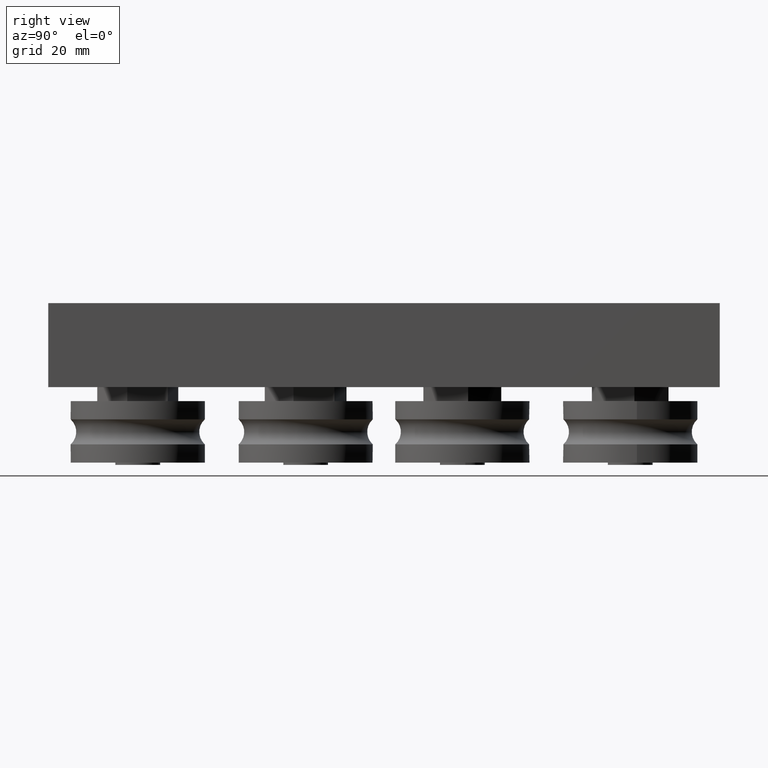
[diagram: clean part render]
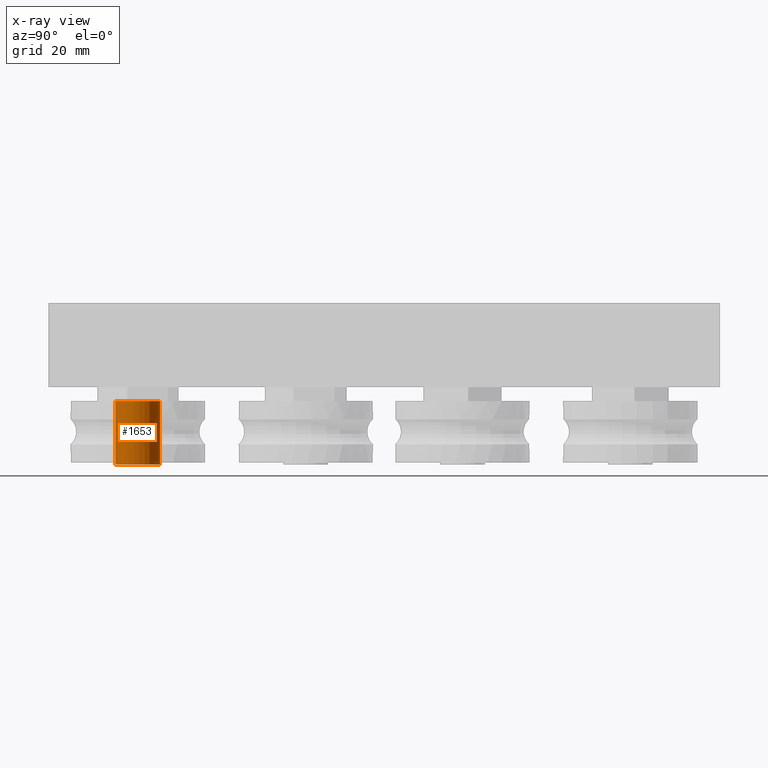
[diagram: x-ray — body ghosted, one internal face saturated and labeled with its STEP entity id]
A machine part, right view, then the same camera in x-ray: the body is ghosted and one INTERNAL B-rep face — a face not visible from any outside direction — is saturated and labeled: STEP entity #1653.
In plain terms, the highlighted cylindrical surface (bore or boss wall) has radius 4 mm, axis along (-0, -0, -1).
Its self-contained STEP definition (entity closure, byte-faithful):
#203=LINE('',#2984,#309);
#309=VECTOR('',#2469,4.);
#368=CYLINDRICAL_SURFACE('',#2035,4.);
#491=FACE_OUTER_BOUND('',#629,.T.);
#629=EDGE_LOOP('',(#1380,#1381,#1382,#1383));
#741=CIRCLE('',#2036,4.);
#742=CIRCLE('',#2037,4.);
#868=VERTEX_POINT('',#2981);
#869=VERTEX_POINT('',#2983);
#1050=EDGE_CURVE('',#868,#868,#741,.T.);
#1051=EDGE_CURVE('',#868,#869,#203,.T.);
#1052=EDGE_CURVE('',#869,#869,#742,.T.);
#1380=ORIENTED_EDGE('',*,*,#1050,.T.);
#1381=ORIENTED_EDGE('',*,*,#1051,.T.);
#1382=ORIENTED_EDGE('',*,*,#1052,.F.);
#1383=ORIENTED_EDGE('',*,*,#1051,.F.);
#1653=ADVANCED_FACE('',(#491),#368,.T.);
#2035=AXIS2_PLACEMENT_3D('',#2980,#2465,#2466);
#2036=AXIS2_PLACEMENT_3D('',#2982,#2467,#2468);
#2037=AXIS2_PLACEMENT_3D('',#2985,#2470,#2471);
#2465=DIRECTION('center_axis',(0.,-9.73879846162418E-17,1.));
#2466=DIRECTION('ref_axis',(0.,1.,9.73879846162418E-17));
#2467=DIRECTION('center_axis',(0.,-9.73879846162418E-17,1.));
#2468=DIRECTION('ref_axis',(1.,0.,0.));
#2469=DIRECTION('',(0.,-9.73879846162418E-17,1.));
#2470=DIRECTION('center_axis',(0.,0.,1.));
#2471=DIRECTION('ref_axis',(0.,1.,9.73879846162418E-17));
#2980=CARTESIAN_POINT('Origin',(0.,-5.55111512312578E-16,4.15));
#2981=CARTESIAN_POINT('',(4.89858719658941E-16,-4.,-1.55));
#2982=CARTESIAN_POINT('Origin',(0.,0.,-1.55));
#2983=CARTESIAN_POINT('',(4.89858719658941E-16,-4.,9.85));
#2984=CARTESIAN_POINT('',(4.89858719658941E-16,-4.,4.15));
#2985=CARTESIAN_POINT('Origin',(0.,-1.11022302462516E-15,9.85));